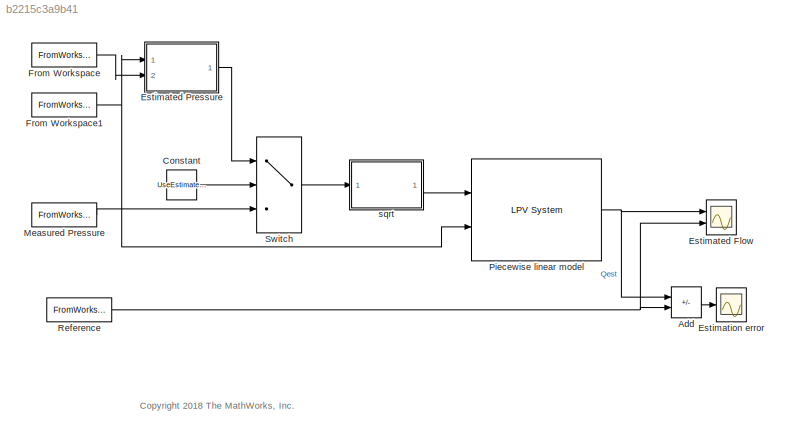
MODEL slx_b2215c3a9b41
KIND model
CONFIG AbsTol = auto
CONFIG EnableMultiTasking = off
CONFIG FixedStep = auto
CONFIG MaxStep = auto
CONFIG MinStep = auto
CONFIG RelTol = 1e-3
CONFIG SampleTimeConstraint = Unconstrained
CONFIG SolverName = VariableStepAuto
CONFIG StartTime = 0.0
CONFIG StopTime = t(end)
BLOCK [Sum] Add
  IconShape = rectangular
  Inputs = -+
  Ports = [2, 1]
BLOCK [Constant] Constant
  Value = UseEstimatedP
BLOCK [Scope] Estimated Flow
  Floating = off
  NumInputPorts = 2
  Ports = [2]
  ScopeSpecificationString = Simulink.scopes.TimeScopeBlockCfg('CurrentConfiguration', extmgr.ConfigurationSet(extmgr.Configuration('Core','General UI',true),extmgr.Configuration('Core','Source UI',true),extmgr.Configuration('Sources','WiredSimulink',true),extmgr.Configuration('Visuals','Time Domain',true,'SerializedDisplays',{struct('MinYLimReal','-0.00051','MaxYLimReal','0.00477','YLabelReal','','MinYLimMag','0.00000','MaxY...<+1410ch>
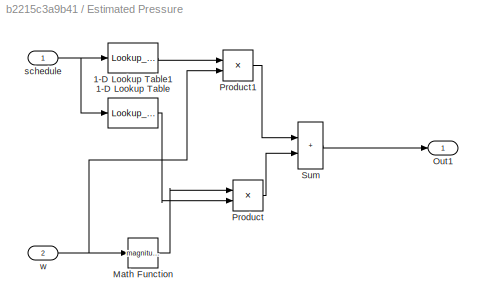
BLOCK [SubSystem] Estimated Pressure
  Ports = [2, 1]
  RequestExecContextInheritance = off
BLOCK [Lookup_n-D] Estimated Pressure/1-D Lookup Table
  BreakpointsForDimension1 = [1 2 3]
  InputPortMap = u0
  InternalRulePriority = Speed
  NumberOfTableDimensions = 1
  Ports = [1, 1]
  RndMeth = Simplest
  Table = th1
BLOCK [Lookup_n-D] Estimated Pressure/1-D Lookup Table1
  BreakpointsForDimension1 = [1 2 3]
  InputPortMap = u0
  InternalRulePriority = Speed
  NumberOfTableDimensions = 1
  Ports = [1, 1]
  RndMeth = Simplest
  Table = th2
BLOCK [Math] Estimated Pressure/Math Function
  Operator = magnitude^2
  Ports = [1, 1]
  SignedPower = on
BLOCK [Outport] Estimated Pressure/Out1
  VectorParamsAs1DForOutWhenUnconnected = off
BLOCK [Product] Estimated Pressure/Product
  Ports = [2, 1]
BLOCK [Product] Estimated Pressure/Product1
  Ports = [2, 1]
BLOCK [Sum] Estimated Pressure/Sum
  IconShape = rectangular
  Ports = [2, 1]
BLOCK [Inport] Estimated Pressure/schedule
BLOCK [Inport] Estimated Pressure/w
  Port = 2
BLOCK [Scope] Estimation error
  Floating = off
  NumInputPorts = 1
  Ports = [1]
  ScopeSpecificationString = Simulink.scopes.TimeScopeBlockCfg('CurrentConfiguration', extmgr.ConfigurationSet(extmgr.Configuration('Core','General UI',true),extmgr.Configuration('Core','Source UI',true),extmgr.Configuration('Sources','WiredSimulink',true,'DataLoggingVariableName','err','DataLogging',true,'DataLoggingSaveFormat','Array'),extmgr.Configuration('Visuals','Time Domain',true,'SerializedDisplays',{struct('MinYLimRe...<+1479ch>
BLOCK [FromWorkspace] From Workspace
  OutputAfterFinalValue = Holding final value
  SampleTime = Ts
  VariableName = [t w]
BLOCK [FromWorkspace] From Workspace1
  Interpolate = off
  OutputAfterFinalValue = Holding final value
  SampleTime = Ts
  VariableName = [t Switch]
BLOCK [FromWorkspace] Measured Pressure
  SampleTime = Ts
  VariableName = [t dp]
BLOCK [Reference] Piecewise linear model  REF=cstblocks/Linear Parameter Varying/LPV System
  Ports = [2, 1]
  SourceBlock = cstblocks/Linear Parameter Varying/LPV System
  SourceProductBaseCode = CT
  SourceType = LPV Block
BLOCK [FromWorkspace] Reference
  OutputAfterFinalValue = Holding final value
  SampleTime = Ts
  VariableName = [t Q]
BLOCK [Switch] Switch
  Criteria = u2 ~= 0
  InputSameDT = off
  SaturateOnIntegerOverflow = off
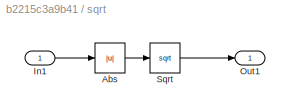
BLOCK [SubSystem] sqrt
  Ports = [1, 1]
  RequestExecContextInheritance = off
BLOCK [Abs] sqrt/Abs
  SaturateOnIntegerOverflow = off
BLOCK [Inport] sqrt/In1
BLOCK [Outport] sqrt/Out1
  VectorParamsAs1DForOutWhenUnconnected = off
BLOCK [Sqrt] sqrt/Sqrt
ANNOTATION (root): <copyright redacted>
LINE Add:1 -> Estimation error:1
LINE Constant:1 -> Switch:2
LINE Estimated Pressure/1-D Lookup Table1:1 -> Estimated Pressure/Product1:1
LINE Estimated Pressure/1-D Lookup Table:1 -> Estimated Pressure/Product:2
LINE Estimated Pressure/Math Function:1 -> Estimated Pressure/Product:1
LINE Estimated Pressure/Product1:1 -> Estimated Pressure/Sum:1
LINE Estimated Pressure/Product:1 -> Estimated Pressure/Sum:2
LINE Estimated Pressure/Sum:1 -> Estimated Pressure/Out1:1
NET Estimated Pressure/schedule:1 -> Estimated Pressure/1-D Lookup Table1:1, Estimated Pressure/1-D Lookup Table:1
NET Estimated Pressure/w:1 -> Estimated Pressure/Math Function:1, Estimated Pressure/Product1:2
LINE Estimated Pressure:1 -> Switch:1
NET From Workspace1:1 -> Estimated Pressure:1, Piecewise linear model:2
LINE From Workspace:1 -> Estimated Pressure:2
LINE Measured Pressure:1 -> Switch:3
NET Piecewise linear model:1 -> Add:1, Estimated Flow:1
NET Reference:1 -> Add:2, Estimated Flow:2
LINE Switch:1 -> sqrt:1
LINE sqrt/Abs:1 -> sqrt/Sqrt:1
LINE sqrt/In1:1 -> sqrt/Abs:1
LINE sqrt/Sqrt:1 -> sqrt/Out1:1
LINE sqrt:1 -> Piecewise linear model:1
note: NET lines group one-source signal fan-out (src -> all destinations, sorted); 1:1 wires keep LINE
